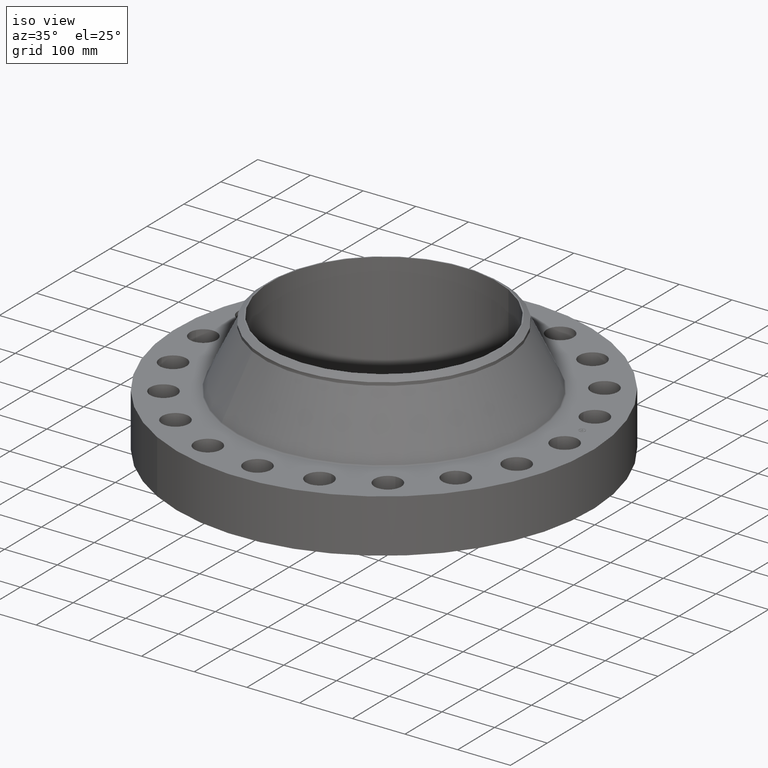
[diagram: clean part render]
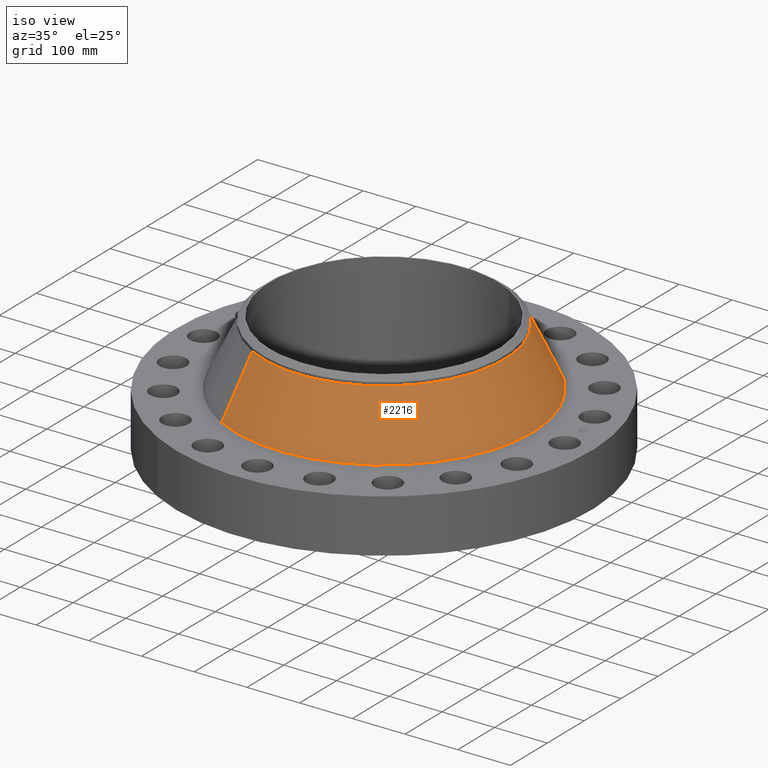
[diagram: same view with one face highlighted and labeled with its STEP entity id]
A machine part, iso view. The second image highlights one B-rep face of the part: STEP entity #2216.
In plain terms, the highlighted conical surface has half-angle 25.573 deg.
Its self-contained STEP definition (entity closure, byte-faithful):
#2035=AXIS2_PLACEMENT_3D('Circle Axis2P3D',#2033,#2034,$) ;
#2203=AXIS2_PLACEMENT_3D('Cone Axis2P3D',#2200,#2201,#2202) ;
#2207=AXIS2_PLACEMENT_3D('Circle Axis2P3D',#2205,#2206,$) ;
#1999=CARTESIAN_POINT('Vertex',(-5.31796213388,-9.73446439059,4.06820023322)) ;
#2006=CARTESIAN_POINT('Vertex',(5.31796213388,9.73446439059,4.06820023323)) ;
#2033=CARTESIAN_POINT('Axis2P3D Location',(0.,0.,4.06820023323)) ;
#2167=CARTESIAN_POINT('Line Origine',(-4.81639599067,-8.81635372381,6.25436785735)) ;
#2171=CARTESIAN_POINT('Vertex',(-4.31482984746,-7.89824305705,8.44053548148)) ;
#2178=CARTESIAN_POINT('Vertex',(4.31482984746,7.89824305705,8.44053548148)) ;
#2181=CARTESIAN_POINT('Line Origine',(4.81639599067,8.81635372381,6.25436785735)) ;
#2200=CARTESIAN_POINT('Axis2P3D Location',(0.,0.,8.44053548148)) ;
#2205=CARTESIAN_POINT('Axis2P3D Location',(0.,0.,8.44053548148)) ;
#2034=DIRECTION('Axis2P3D Direction',(-0.,0.,-0.0393700787402)) ;
#2168=DIRECTION('Vector Direction',(-0.00814768080718,-0.014914229678,-0.0355131546132)) ;
#2182=DIRECTION('Vector Direction',(0.00814768080718,0.014914229678,-0.0355131546132)) ;
#2201=DIRECTION('Axis2P3D Direction',(0.,0.,-0.0393700787402)) ;
#2202=DIRECTION('Axis2P3D XDirection',(0.0188750212049,0.0345504945626,0.)) ;
#2206=DIRECTION('Axis2P3D Direction',(-0.,0.,-0.0393700787402)) ;
#2169=VECTOR('Line Direction',#2168,0.0393700787402) ;
#2183=VECTOR('Line Direction',#2182,0.0393700787402) ;
#2211=ORIENTED_EDGE('',*,*,#2037,.F.) ;
#2212=ORIENTED_EDGE('',*,*,#2185,.T.) ;
#2213=ORIENTED_EDGE('',*,*,#2209,.T.) ;
#2214=ORIENTED_EDGE('',*,*,#2173,.F.) ;
#2216=ADVANCED_FACE('PartBody',(#2215),#2204,.T.) ;
#2036=CIRCLE('generated circle',#2035,11.0923630588) ;
#2208=CIRCLE('generated circle',#2207,9.00000000004) ;
#2204=CONICAL_SURFACE('Cone',#2203,9.00000000004,0.446337485252) ;
#2037=EDGE_CURVE('',#2007,#2000,#2036,.T.) ;
#2173=EDGE_CURVE('',#2000,#2172,#2170,.F.) ;
#2185=EDGE_CURVE('',#2007,#2179,#2184,.F.) ;
#2209=EDGE_CURVE('',#2179,#2172,#2208,.T.) ;
#2210=EDGE_LOOP('',(#2211,#2212,#2213,#2214)) ;
#2215=FACE_OUTER_BOUND('',#2210,.T.) ;
#2170=LINE('Line',#2167,#2169) ;
#2184=LINE('Line',#2181,#2183) ;
#2000=VERTEX_POINT('',#1999) ;
#2007=VERTEX_POINT('',#2006) ;
#2172=VERTEX_POINT('',#2171) ;
#2179=VERTEX_POINT('',#2178) ;